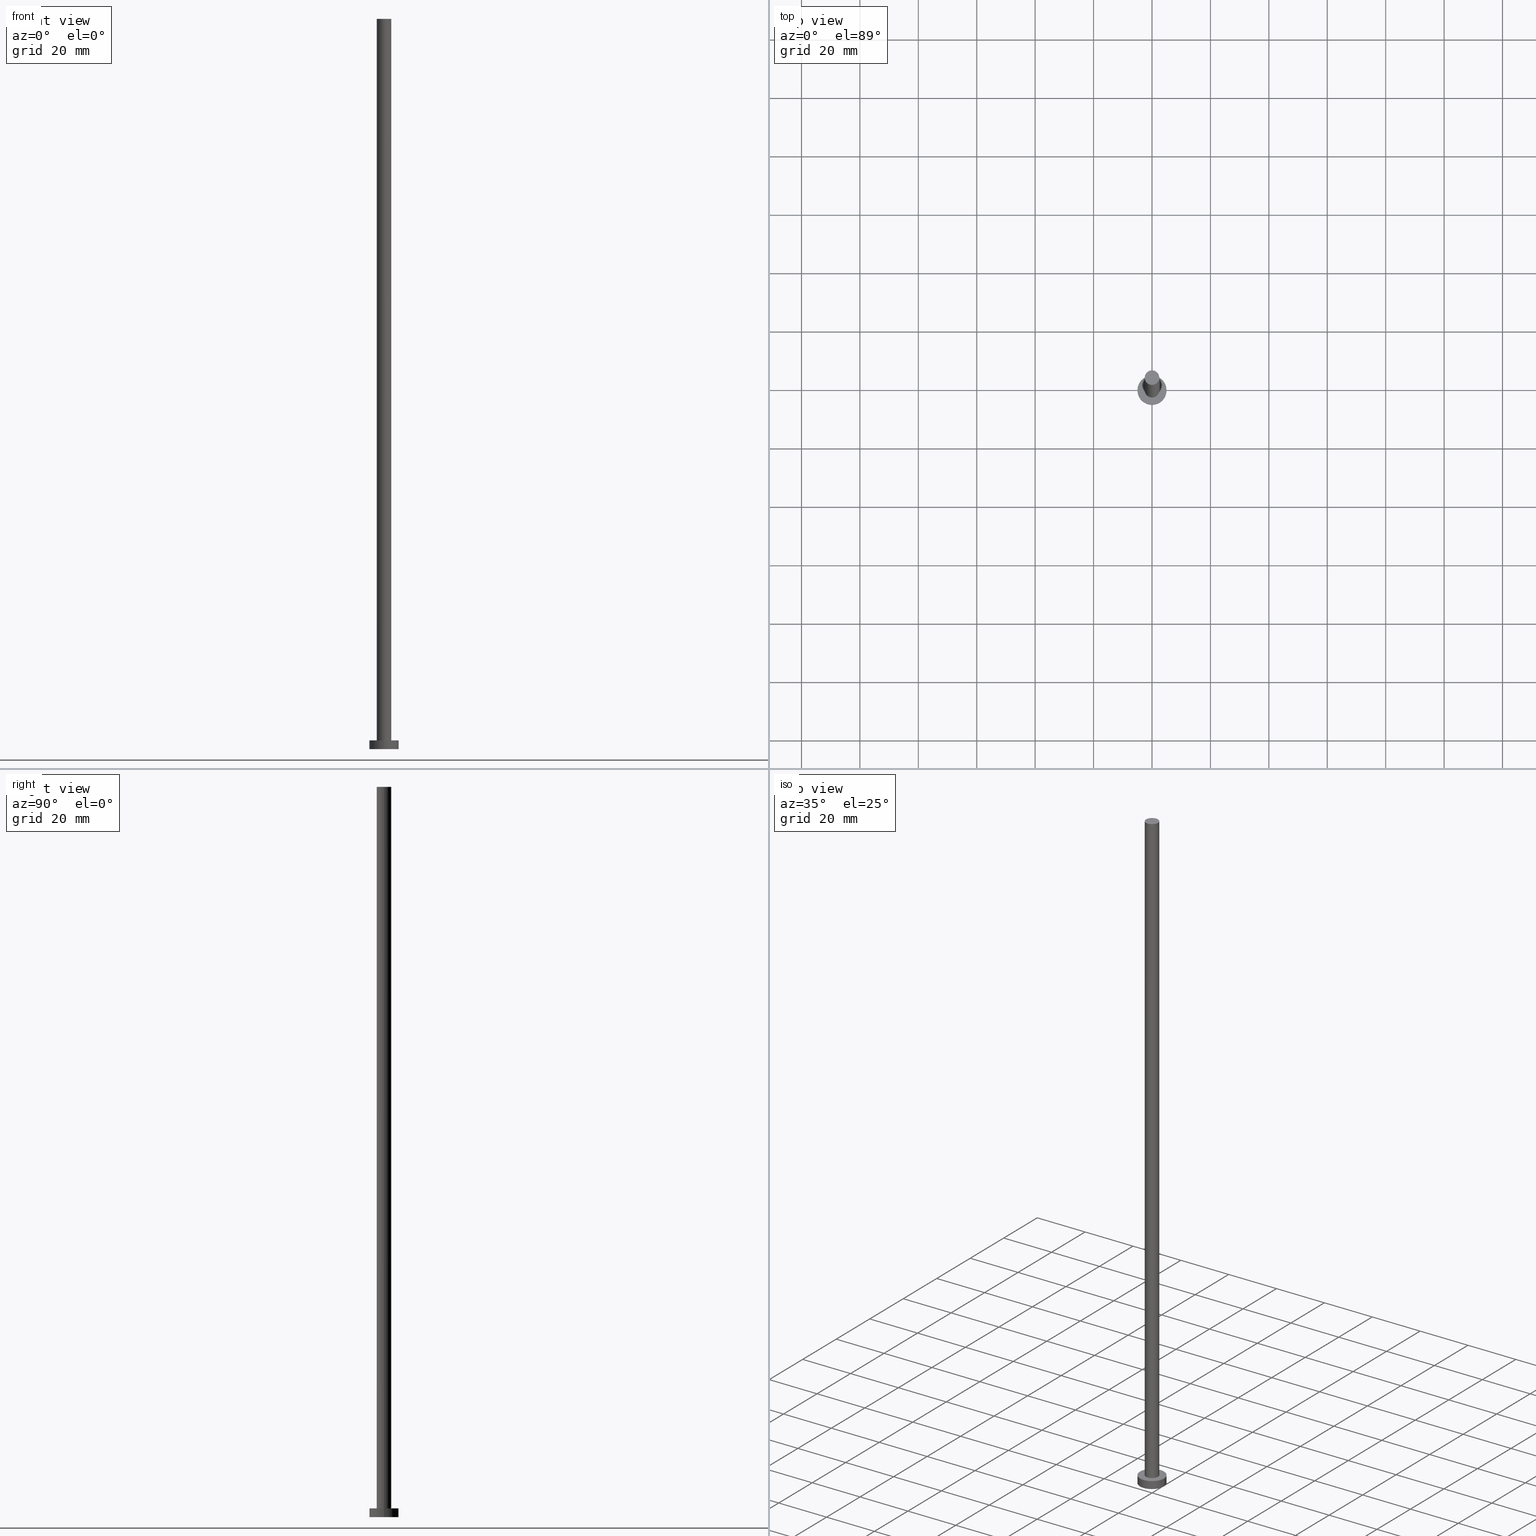
[diagram: canonical four-view strip — front | top / right | iso, engineering-drawing reading convention]
A machine part, canonical four-view strip (front | top / right | iso — engineering-drawing reading convention). The complete STEP part file that produces these views, byte-faithful:
ISO-10303-21;
HEADER;
FILE_DESCRIPTION (( 'STEP AP203' ),
    '1' );
FILE_NAME ('c87a.STEP',
    '2023-02-13T15:50:29',
    ( '' ),
    ( '' ),
    'SwSTEP 2.0',
    'SolidWorks 2019',
    '' );
FILE_SCHEMA (( 'CONFIG_CONTROL_DESIGN' ));
ENDSEC;

DATA;
#1 = ADVANCED_BREP_SHAPE_REPRESENTATION ( 'c87a', ( #179, #48 ), #225 ) ;
#2 = FACE_BOUND ( 'NONE', #182, .T. ) ;
#3 = LOCAL_TIME ( 16, 50, 29.00000000000000000, #88 ) ;
#4 = CYLINDRICAL_SURFACE ( 'NONE', #124, 5.000000000000000000 ) ;
#5 = APPROVAL_STATUS ( 'not_yet_approved' ) ;
#6 = EDGE_LOOP ( 'NONE', ( #172, #156, #153, #23 ) ) ;
#7 = CIRCLE ( 'NONE', #157, 5.000000000000000000 ) ;
#8 = DIRECTION ( 'NONE',  ( 1.000000000000000000, 0.000000000000000000, 0.000000000000000000 ) ) ;
#9 = ORIENTED_EDGE ( 'NONE', *, *, #228, .F. ) ;
#10 = DIRECTION ( 'NONE',  ( 0.000000000000000000, 0.000000000000000000, 1.000000000000000000 ) ) ;
#11 = EDGE_CURVE ( 'NONE', #242, #137, #198, .T. ) ;
#12 = CARTESIAN_POINT ( 'NONE',  ( -5.000000000000000000, 0.000000000000000000, 0.000000000000000000 ) ) ;
#13 = CIRCLE ( 'NONE', #25, 2.500000000000000000 ) ;
#14 = AXIS2_PLACEMENT_3D ( 'NONE', #239, #139, #121 ) ;
#15 = APPROVAL_STATUS ( 'not_yet_approved' ) ;
#16 = FACE_OUTER_BOUND ( 'NONE', #44, .T. ) ;
#17 = PERSON ( 'NEUR�EN�', 'NEUR�EN�', 'NEUR�EN�', ('NEUR�EN�'), ('NEUR�EN�'), ('NEUR�EN�') ) ;
#18 = PRODUCT_DEFINITION_SHAPE ( 'NONE', 'NONE',  #49 ) ;
#19 = AXIS2_PLACEMENT_3D ( 'NONE', #107, #247, #185 ) ;
#20 = ORIENTED_EDGE ( 'NONE', *, *, #191, .F. ) ;
#21 = AXIS2_PLACEMENT_3D ( 'NONE', #126, #77, #110 ) ;
#22 = MECHANICAL_CONTEXT ( 'NONE', #142, 'mechanical' ) ;
#23 = ORIENTED_EDGE ( 'NONE', *, *, #217, .F. ) ;
#24 = PERSON_AND_ORGANIZATION_ROLE ( 'design_owner' ) ;
#25 = AXIS2_PLACEMENT_3D ( 'NONE', #102, #177, #91 ) ;
#26 = ADVANCED_FACE ( 'NONE', ( #216 ), #4, .T. ) ;
#27 = ORIENTED_EDGE ( 'NONE', *, *, #199, .T. ) ;
#28 = DIRECTION ( 'NONE',  ( 0.000000000000000000, 0.000000000000000000, 1.000000000000000000 ) ) ;
#29 = CARTESIAN_POINT ( 'NONE',  ( 2.500000000000000000, 3.061616997868383141E-16, 250.0000000000000000 ) ) ;
#30 = DIRECTION ( 'NONE',  ( -0.000000000000000000, -0.000000000000000000, -1.000000000000000000 ) ) ;
#31 = COORDINATED_UNIVERSAL_TIME_OFFSET ( 1, 0, .AHEAD. ) ;
#32 = LOCAL_TIME ( 16, 50, 29.00000000000000000, #210 ) ;
#33 = CARTESIAN_POINT ( 'NONE',  ( 0.000000000000000000, 0.000000000000000000, 250.0000000000000000 ) ) ;
#34 = ADVANCED_FACE ( 'NONE', ( #2, #162 ), #63, .T. ) ;
#35 = CARTESIAN_POINT ( 'NONE',  ( 0.000000000000000000, 0.000000000000000000, 3.000000000000000000 ) ) ;
#36 = DIRECTION ( 'NONE',  ( 1.000000000000000000, 0.000000000000000000, -0.000000000000000000 ) ) ;
#37 = COORDINATED_UNIVERSAL_TIME_OFFSET ( 1, 0, .AHEAD. ) ;
#38 = DATE_AND_TIME ( #116, #84 ) ;
#39 = ORIENTED_EDGE ( 'NONE', *, *, #228, .T. ) ;
#40 = CC_DESIGN_PERSON_AND_ORGANIZATION_ASSIGNMENT ( #98, #90, ( #49 ) ) ;
#41 = AXIS2_PLACEMENT_3D ( 'NONE', #33, #206, #202 ) ;
#42 = CARTESIAN_POINT ( 'NONE',  ( 5.000000000000000000, 6.123233995736766282E-16, 0.000000000000000000 ) ) ;
#43 = VERTEX_POINT ( 'NONE', #64 ) ;
#44 = EDGE_LOOP ( 'NONE', ( #175, #95 ) ) ;
#45 = CARTESIAN_POINT ( 'NONE',  ( 0.000000000000000000, 0.000000000000000000, 3.000000000000000000 ) ) ;
#46 = APPROVAL_PERSON_ORGANIZATION ( #103, #155, #140 ) ;
#47 = ORIENTED_EDGE ( 'NONE', *, *, #138, .F. ) ;
#48 = AXIS2_PLACEMENT_3D ( 'NONE', #170, #192, #78 ) ;
#49 = PRODUCT_DEFINITION ( 'NEZN�M�', '', #154, #50 ) ;
#50 = DESIGN_CONTEXT ( 'detailed design', #201, 'design' ) ;
#51 = FACE_OUTER_BOUND ( 'NONE', #253, .T. ) ;
#52 = FACE_OUTER_BOUND ( 'NONE', #60, .T. ) ;
#53 = CARTESIAN_POINT ( 'NONE',  ( 0.000000000000000000, 0.000000000000000000, 3.000000000000000000 ) ) ;
#54 = VECTOR ( 'NONE', #205, 1000.000000000000000 ) ;
#55 = PRODUCT ( 'c87a', 'c87a', '', ( #22 ) ) ;
#56 = PERSON_AND_ORGANIZATION ( #17, #85 ) ;
#57 = EDGE_CURVE ( 'NONE', #194, #227, #129, .T. ) ;
#58 =( LENGTH_UNIT ( ) NAMED_UNIT ( * ) SI_UNIT ( .MILLI., .METRE. ) );
#59 = ORIENTED_EDGE ( 'NONE', *, *, #65, .F. ) ;
#60 = EDGE_LOOP ( 'NONE', ( #120, #9, #117, #188 ) ) ;
#61 = CC_DESIGN_PERSON_AND_ORGANIZATION_ASSIGNMENT ( #106, #144, ( #209 ) ) ;
#62 = CIRCLE ( 'NONE', #92, 5.000000000000000000 ) ;
#63 = PLANE ( 'NONE',  #69 ) ;
#64 = CARTESIAN_POINT ( 'NONE',  ( -2.500000000000000000, 0.000000000000000000, 250.0000000000000000 ) ) ;
#65 = EDGE_CURVE ( 'NONE', #43, #242, #13, .T. ) ;
#66 = CC_DESIGN_APPROVAL ( #155, ( #154 ) ) ;
#67 = PERSON_AND_ORGANIZATION ( #17, #85 ) ;
#68 = DIRECTION ( 'NONE',  ( 0.000000000000000000, 0.000000000000000000, 1.000000000000000000 ) ) ;
#69 = AXIS2_PLACEMENT_3D ( 'NONE', #45, #68, #123 ) ;
#70 = CALENDAR_DATE ( 2023, 13, 2 ) ;
#71 = LINE ( 'NONE', #221, #54 ) ;
#72 = PERSON_AND_ORGANIZATION_ROLE ( 'design_supplier' ) ;
#73 = CIRCLE ( 'NONE', #232, 5.000000000000000000 ) ;
#74 = CARTESIAN_POINT ( 'NONE',  ( -5.000000000000000000, 0.000000000000000000, 3.000000000000000000 ) ) ;
#75 = PLANE ( 'NONE',  #195 ) ;
#76 = APPROVAL_ROLE ( '' ) ;
#77 = DIRECTION ( 'NONE',  ( 0.000000000000000000, 0.000000000000000000, 1.000000000000000000 ) ) ;
#78 = DIRECTION ( 'NONE',  ( 1.000000000000000000, 0.000000000000000000, 0.000000000000000000 ) ) ;
#79 = EDGE_CURVE ( 'NONE', #171, #194, #71, .T. ) ;
#80 = DIRECTION ( 'NONE',  ( 0.000000000000000000, 0.000000000000000000, 1.000000000000000000 ) ) ;
#81 = CIRCLE ( 'NONE', #113, 2.500000000000000000 ) ;
#82 = ORIENTED_EDGE ( 'NONE', *, *, #199, .F. ) ;
#83 = EDGE_LOOP ( 'NONE', ( #176, #215, #27, #230 ) ) ;
#84 = LOCAL_TIME ( 16, 50, 29.00000000000000000, #211 ) ;
#85 = ORGANIZATION ( 'NEUR�EN�', 'NEUR�EN�', '' ) ;
#86 = CC_DESIGN_APPROVAL ( #160, ( #209 ) ) ;
#87 = EDGE_CURVE ( 'NONE', #255, #171, #7, .T. ) ;
#88 = COORDINATED_UNIVERSAL_TIME_OFFSET ( 1, 0, .AHEAD. ) ;
#89 = CIRCLE ( 'NONE', #19, 2.500000000000000000 ) ;
#90 = PERSON_AND_ORGANIZATION_ROLE ( 'creator' ) ;
#91 = DIRECTION ( 'NONE',  ( 1.000000000000000000, 0.000000000000000000, 0.000000000000000000 ) ) ;
#92 = AXIS2_PLACEMENT_3D ( 'NONE', #53, #80, #111 ) ;
#93 = CARTESIAN_POINT ( 'NONE',  ( 0.000000000000000000, 0.000000000000000000, 0.000000000000000000 ) ) ;
#94 = DIRECTION ( 'NONE',  ( 1.000000000000000000, 0.000000000000000000, 0.000000000000000000 ) ) ;
#95 = ORIENTED_EDGE ( 'NONE', *, *, #219, .T. ) ;
#96 = ADVANCED_FACE ( 'NONE', ( #52 ), #208, .T. ) ;
#97 = DIRECTION ( 'NONE',  ( 1.000000000000000000, 0.000000000000000000, 0.000000000000000000 ) ) ;
#98 = PERSON_AND_ORGANIZATION ( #17, #85 ) ;
#99 = CARTESIAN_POINT ( 'NONE',  ( -2.500000000000000000, 0.000000000000000000, 3.000000000000000000 ) ) ;
#100 = LOCAL_TIME ( 16, 50, 29.00000000000000000, #37 ) ;
#101 = EDGE_LOOP ( 'NONE', ( #39, #169 ) ) ;
#102 = CARTESIAN_POINT ( 'NONE',  ( 0.000000000000000000, 0.000000000000000000, 250.0000000000000000 ) ) ;
#103 = PERSON_AND_ORGANIZATION ( #17, #85 ) ;
#104 = DATE_AND_TIME ( #70, #218 ) ;
#105 = CARTESIAN_POINT ( 'NONE',  ( 0.000000000000000000, 0.000000000000000000, 250.0000000000000000 ) ) ;
#106 = PERSON_AND_ORGANIZATION ( #17, #85 ) ;
#107 = CARTESIAN_POINT ( 'NONE',  ( 0.000000000000000000, 0.000000000000000000, 3.000000000000000000 ) ) ;
#108 = CC_DESIGN_PERSON_AND_ORGANIZATION_ASSIGNMENT ( #67, #72, ( #154 ) ) ;
#109 = DATE_AND_TIME ( #150, #100 ) ;
#110 = DIRECTION ( 'NONE',  ( 1.000000000000000000, 0.000000000000000000, 0.000000000000000000 ) ) ;
#111 = DIRECTION ( 'NONE',  ( 1.000000000000000000, 0.000000000000000000, 0.000000000000000000 ) ) ;
#112 = SHAPE_DEFINITION_REPRESENTATION ( #18, #1 ) ;
#113 = AXIS2_PLACEMENT_3D ( 'NONE', #174, #28, #97 ) ;
#114 = APPLICATION_PROTOCOL_DEFINITION ( 'international standard', 'config_control_design', 1994, #201 ) ;
#115 = EDGE_LOOP ( 'NONE', ( #119, #59, #118, #190 ) ) ;
#116 = CALENDAR_DATE ( 2023, 13, 2 ) ;
#117 = ORIENTED_EDGE ( 'NONE', *, *, #79, .T. ) ;
#118 = ORIENTED_EDGE ( 'NONE', *, *, #217, .T. ) ;
#119 = ORIENTED_EDGE ( 'NONE', *, *, #11, .F. ) ;
#120 = ORIENTED_EDGE ( 'NONE', *, *, #236, .F. ) ;
#121 = DIRECTION ( 'NONE',  ( 1.000000000000000000, 0.000000000000000000, 0.000000000000000000 ) ) ;
#122 = CC_DESIGN_APPROVAL ( #131, ( #49 ) ) ;
#123 = DIRECTION ( 'NONE',  ( 1.000000000000000000, 0.000000000000000000, -0.000000000000000000 ) ) ;
#124 = AXIS2_PLACEMENT_3D ( 'NONE', #158, #30, #235 ) ;
#125 = DATE_AND_TIME ( #238, #3 ) ;
#126 = CARTESIAN_POINT ( 'NONE',  ( 0.000000000000000000, 0.000000000000000000, 3.000000000000000000 ) ) ;
#127 = CC_DESIGN_SECURITY_CLASSIFICATION ( #209, ( #154 ) ) ;
#128 = FACE_OUTER_BOUND ( 'NONE', #6, .T. ) ;
#129 = CIRCLE ( 'NONE', #14, 5.000000000000000000 ) ;
#130 = DIRECTION ( 'NONE',  ( 0.000000000000000000, 0.000000000000000000, 1.000000000000000000 ) ) ;
#131 = APPROVAL ( #135, 'NEUR�EN�' ) ;
#132 = APPROVAL_DATE_TIME ( #148, #160 ) ;
#133 = CALENDAR_DATE ( 2023, 13, 2 ) ;
#134 = CC_DESIGN_PERSON_AND_ORGANIZATION_ASSIGNMENT ( #248, #24, ( #55 ) ) ;
#135 = APPROVAL_STATUS ( 'not_yet_approved' ) ;
#136 =( NAMED_UNIT ( * ) PLANE_ANGLE_UNIT ( ) SI_UNIT ( $, .RADIAN. ) );
#137 = VERTEX_POINT ( 'NONE', #180 ) ;
#138 = EDGE_CURVE ( 'NONE', #137, #212, #151, .T. ) ;
#139 = DIRECTION ( 'NONE',  ( 0.000000000000000000, 0.000000000000000000, 1.000000000000000000 ) ) ;
#140 = APPROVAL_ROLE ( '' ) ;
#141 = CYLINDRICAL_SURFACE ( 'NONE', #166, 2.500000000000000000 ) ;
#142 = APPLICATION_CONTEXT ( 'configuration controlled 3d designs of mechanical parts and assemblies' ) ;
#143 = FACE_OUTER_BOUND ( 'NONE', #115, .T. ) ;
#144 = PERSON_AND_ORGANIZATION_ROLE ( 'classification_officer' ) ;
#145 = CARTESIAN_POINT ( 'NONE',  ( 0.000000000000000000, 0.000000000000000000, 250.0000000000000000 ) ) ;
#146 = UNCERTAINTY_MEASURE_WITH_UNIT (LENGTH_MEASURE( 1.000000000000000082E-05 ), #58, 'distance_accuracy_value', 'NONE');
#147 = DIRECTION ( 'NONE',  ( 0.000000000000000000, 0.000000000000000000, 1.000000000000000000 ) ) ;
#148 = DATE_AND_TIME ( #133, #32 ) ;
#149 = LINE ( 'NONE', #251, #249 ) ;
#150 = CALENDAR_DATE ( 2023, 13, 2 ) ;
#151 = CIRCLE ( 'NONE', #21, 2.500000000000000000 ) ;
#152 = DATE_TIME_ROLE ( 'classification_date' ) ;
#153 = ORIENTED_EDGE ( 'NONE', *, *, #138, .T. ) ;
#154 = PRODUCT_DEFINITION_FORMATION_WITH_SPECIFIED_SOURCE ( 'LIBOVOLN�', '', #55, .NOT_KNOWN. ) ;
#155 = APPROVAL ( #5, 'NEUR�EN�' ) ;
#156 = ORIENTED_EDGE ( 'NONE', *, *, #11, .T. ) ;
#157 = AXIS2_PLACEMENT_3D ( 'NONE', #35, #207, #8 ) ;
#158 = CARTESIAN_POINT ( 'NONE',  ( 0.000000000000000000, 0.000000000000000000, 3.000000000000000000 ) ) ;
#159 = DIRECTION ( 'NONE',  ( -0.000000000000000000, -0.000000000000000000, -1.000000000000000000 ) ) ;
#160 = APPROVAL ( #15, 'NEUR�EN�' ) ;
#161 = DIRECTION ( 'NONE',  ( -0.000000000000000000, -0.000000000000000000, -1.000000000000000000 ) ) ;
#162 = FACE_OUTER_BOUND ( 'NONE', #101, .T. ) ;
#163 = AXIS2_PLACEMENT_3D ( 'NONE', #93, #130, #168 ) ;
#164 = PLANE ( 'NONE',  #163 ) ;
#165 = ADVANCED_FACE ( 'NONE', ( #51 ), #164, .F. ) ;
#166 = AXIS2_PLACEMENT_3D ( 'NONE', #105, #184, #187 ) ;
#167 = CARTESIAN_POINT ( 'NONE',  ( 0.000000000000000000, 0.000000000000000000, 0.000000000000000000 ) ) ;
#168 = DIRECTION ( 'NONE',  ( 1.000000000000000000, 0.000000000000000000, -0.000000000000000000 ) ) ;
#169 = ORIENTED_EDGE ( 'NONE', *, *, #87, .T. ) ;
#170 = CARTESIAN_POINT ( 'NONE',  ( 0.000000000000000000, 0.000000000000000000, 0.000000000000000000 ) ) ;
#171 = VERTEX_POINT ( 'NONE', #74 ) ;
#172 = ORIENTED_EDGE ( 'NONE', *, *, #219, .F. ) ;
#173 = ADVANCED_FACE ( 'NONE', ( #128 ), #204, .T. ) ;
#174 = CARTESIAN_POINT ( 'NONE',  ( 0.000000000000000000, 0.000000000000000000, 250.0000000000000000 ) ) ;
#175 = ORIENTED_EDGE ( 'NONE', *, *, #65, .T. ) ;
#176 = ORIENTED_EDGE ( 'NONE', *, *, #87, .F. ) ;
#177 = DIRECTION ( 'NONE',  ( 0.000000000000000000, 0.000000000000000000, 1.000000000000000000 ) ) ;
#178 = ADVANCED_FACE ( 'NONE', ( #143 ), #141, .T. ) ;
#179 = MANIFOLD_SOLID_BREP ( 'P�idat vysunut�m3', #234 ) ;
#180 = CARTESIAN_POINT ( 'NONE',  ( 2.500000000000000000, 3.061616997868383141E-16, 3.000000000000000000 ) ) ;
#181 = ADVANCED_FACE ( 'NONE', ( #16 ), #75, .T. ) ;
#182 = EDGE_LOOP ( 'NONE', ( #20, #47 ) ) ;
#183 = APPROVAL_DATE_TIME ( #104, #155 ) ;
#184 = DIRECTION ( 'NONE',  ( -0.000000000000000000, -0.000000000000000000, -1.000000000000000000 ) ) ;
#185 = DIRECTION ( 'NONE',  ( 1.000000000000000000, 0.000000000000000000, 0.000000000000000000 ) ) ;
#186 = CARTESIAN_POINT ( 'NONE',  ( 0.000000000000000000, 0.000000000000000000, 3.000000000000000000 ) ) ;
#187 = DIRECTION ( 'NONE',  ( -1.000000000000000000, 0.000000000000000000, 0.000000000000000000 ) ) ;
#188 = ORIENTED_EDGE ( 'NONE', *, *, #57, .T. ) ;
#189 = APPROVAL_DATE_TIME ( #38, #131 ) ;
#190 = ORIENTED_EDGE ( 'NONE', *, *, #191, .T. ) ;
#191 = EDGE_CURVE ( 'NONE', #212, #137, #89, .T. ) ;
#192 = DIRECTION ( 'NONE',  ( 0.000000000000000000, 0.000000000000000000, 1.000000000000000000 ) ) ;
#193 = APPLICATION_PROTOCOL_DEFINITION ( 'international standard', 'config_control_design', 1994, #142 ) ;
#194 = VERTEX_POINT ( 'NONE', #12 ) ;
#195 = AXIS2_PLACEMENT_3D ( 'NONE', #145, #10, #36 ) ;
#196 = CC_DESIGN_PERSON_AND_ORGANIZATION_ASSIGNMENT ( #243, #240, ( #154 ) ) ;
#197 = AXIS2_PLACEMENT_3D ( 'NONE', #186, #244, #222 ) ;
#198 = LINE ( 'NONE', #29, #254 ) ;
#199 = EDGE_CURVE ( 'NONE', #227, #194, #73, .T. ) ;
#200 = DATE_TIME_ROLE ( 'creation_date' ) ;
#201 = APPLICATION_CONTEXT ( 'configuration controlled 3d designs of mechanical parts and assemblies' ) ;
#202 = DIRECTION ( 'NONE',  ( -1.000000000000000000, 0.000000000000000000, 0.000000000000000000 ) ) ;
#203 = VECTOR ( 'NONE', #229, 1000.000000000000000 ) ;
#204 = CYLINDRICAL_SURFACE ( 'NONE', #41, 2.500000000000000000 ) ;
#205 = DIRECTION ( 'NONE',  ( -0.000000000000000000, -0.000000000000000000, -1.000000000000000000 ) ) ;
#206 = DIRECTION ( 'NONE',  ( -0.000000000000000000, -0.000000000000000000, -1.000000000000000000 ) ) ;
#207 = DIRECTION ( 'NONE',  ( 0.000000000000000000, 0.000000000000000000, 1.000000000000000000 ) ) ;
#208 = CYLINDRICAL_SURFACE ( 'NONE', #197, 5.000000000000000000 ) ;
#209 = SECURITY_CLASSIFICATION ( '', '', #213 ) ;
#210 = COORDINATED_UNIVERSAL_TIME_OFFSET ( 1, 0, .AHEAD. ) ;
#211 = COORDINATED_UNIVERSAL_TIME_OFFSET ( 1, 0, .AHEAD. ) ;
#212 = VERTEX_POINT ( 'NONE', #99 ) ;
#213 = SECURITY_CLASSIFICATION_LEVEL ( 'unclassified' ) ;
#214 = ORIENTED_EDGE ( 'NONE', *, *, #57, .F. ) ;
#215 = ORIENTED_EDGE ( 'NONE', *, *, #236, .T. ) ;
#216 = FACE_OUTER_BOUND ( 'NONE', #83, .T. ) ;
#217 = EDGE_CURVE ( 'NONE', #43, #212, #149, .T. ) ;
#218 = LOCAL_TIME ( 16, 50, 29.00000000000000000, #31 ) ;
#219 = EDGE_CURVE ( 'NONE', #242, #43, #81, .T. ) ;
#220 = CC_DESIGN_DATE_AND_TIME_ASSIGNMENT ( #109, #152, ( #209 ) ) ;
#221 = CARTESIAN_POINT ( 'NONE',  ( -5.000000000000000000, 0.000000000000000000, 3.000000000000000000 ) ) ;
#222 = DIRECTION ( 'NONE',  ( -1.000000000000000000, 0.000000000000000000, 0.000000000000000000 ) ) ;
#223 = APPROVAL_PERSON_ORGANIZATION ( #56, #131, #233 ) ;
#224 = PRODUCT_RELATED_PRODUCT_CATEGORY ( 'detail', '', ( #55 ) ) ;
#225 =( GEOMETRIC_REPRESENTATION_CONTEXT ( 3 ) GLOBAL_UNCERTAINTY_ASSIGNED_CONTEXT ( ( #146 ) ) GLOBAL_UNIT_ASSIGNED_CONTEXT ( ( #58, #136, #226 ) ) REPRESENTATION_CONTEXT ( 'NONE', 'WORKASPACE' ) );
#226 =( NAMED_UNIT ( * ) SI_UNIT ( $, .STERADIAN. ) SOLID_ANGLE_UNIT ( ) );
#227 = VERTEX_POINT ( 'NONE', #42 ) ;
#228 = EDGE_CURVE ( 'NONE', #171, #255, #62, .T. ) ;
#229 = DIRECTION ( 'NONE',  ( -0.000000000000000000, -0.000000000000000000, -1.000000000000000000 ) ) ;
#230 = ORIENTED_EDGE ( 'NONE', *, *, #79, .F. ) ;
#231 = CARTESIAN_POINT ( 'NONE',  ( 5.000000000000000000, 6.123233995736766282E-16, 3.000000000000000000 ) ) ;
#232 = AXIS2_PLACEMENT_3D ( 'NONE', #167, #147, #94 ) ;
#233 = APPROVAL_ROLE ( '' ) ;
#234 = CLOSED_SHELL ( 'NONE', ( #173, #26, #96, #34, #165, #178, #181 ) ) ;
#235 = DIRECTION ( 'NONE',  ( -1.000000000000000000, 0.000000000000000000, 0.000000000000000000 ) ) ;
#236 = EDGE_CURVE ( 'NONE', #255, #227, #250, .T. ) ;
#237 = CARTESIAN_POINT ( 'NONE',  ( 5.000000000000000000, 6.123233995736766282E-16, 3.000000000000000000 ) ) ;
#238 = CALENDAR_DATE ( 2023, 13, 2 ) ;
#239 = CARTESIAN_POINT ( 'NONE',  ( 0.000000000000000000, 0.000000000000000000, 0.000000000000000000 ) ) ;
#240 = PERSON_AND_ORGANIZATION_ROLE ( 'creator' ) ;
#241 = APPROVAL_PERSON_ORGANIZATION ( #246, #160, #76 ) ;
#242 = VERTEX_POINT ( 'NONE', #252 ) ;
#243 = PERSON_AND_ORGANIZATION ( #17, #85 ) ;
#244 = DIRECTION ( 'NONE',  ( -0.000000000000000000, -0.000000000000000000, -1.000000000000000000 ) ) ;
#245 = CC_DESIGN_DATE_AND_TIME_ASSIGNMENT ( #125, #200, ( #49 ) ) ;
#246 = PERSON_AND_ORGANIZATION ( #17, #85 ) ;
#247 = DIRECTION ( 'NONE',  ( 0.000000000000000000, 0.000000000000000000, 1.000000000000000000 ) ) ;
#248 = PERSON_AND_ORGANIZATION ( #17, #85 ) ;
#249 = VECTOR ( 'NONE', #161, 1000.000000000000000 ) ;
#250 = LINE ( 'NONE', #237, #203 ) ;
#251 = CARTESIAN_POINT ( 'NONE',  ( -2.500000000000000000, 0.000000000000000000, 250.0000000000000000 ) ) ;
#252 = CARTESIAN_POINT ( 'NONE',  ( 2.500000000000000000, 3.061616997868383141E-16, 250.0000000000000000 ) ) ;
#253 = EDGE_LOOP ( 'NONE', ( #214, #82 ) ) ;
#254 = VECTOR ( 'NONE', #159, 1000.000000000000000 ) ;
#255 = VERTEX_POINT ( 'NONE', #231 ) ;
ENDSEC;
END-ISO-10303-21;
